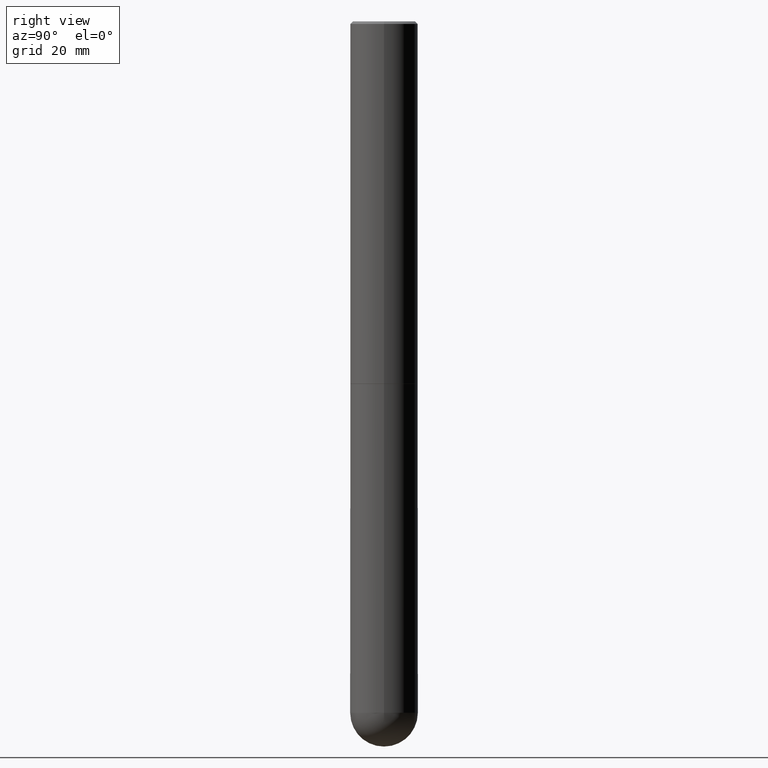
[diagram: clean part render]
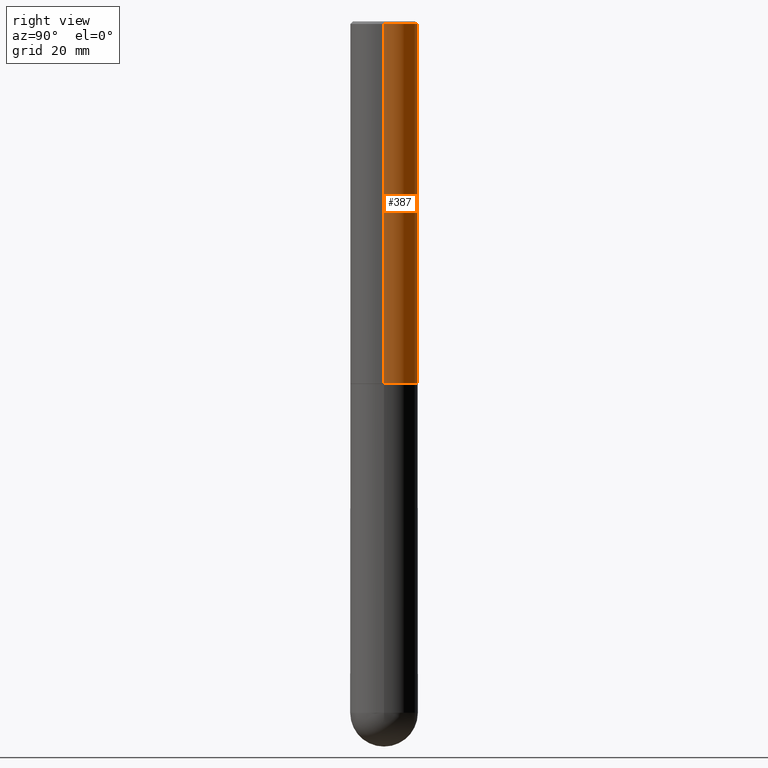
[diagram: same view with one face highlighted and labeled with its STEP entity id]
A machine part, right view. The second image highlights one B-rep face of the part: STEP entity #387.
In plain terms, the highlighted cylindrical surface (edge-blend (fillet) strip) has radius 7.0002 mm, axis along (-0, 0, 1).
Its self-contained STEP definition (entity closure, byte-faithful):
#1 = ORIENTED_EDGE ( 'NONE', *, *, #289, .F. ) ;
#8 = CARTESIAN_POINT ( 'NONE',  ( 7.218290275216666916E-29, -1.030580546786331359E-14, -2.951700000000000212 ) ) ;
#12 = EDGE_CURVE ( 'NONE', #248, #194, #258, .T. ) ;
#13 = CYLINDRICAL_SURFACE ( 'NONE', #69, 0.2756000000000002337 ) ;
#27 = ORIENTED_EDGE ( 'NONE', *, *, #87, .T. ) ;
#31 = VERTEX_POINT ( 'NONE', #45 ) ;
#45 = CARTESIAN_POINT ( 'NONE',  ( -0.2756000000000000116, 1.854674887193472050E-15, -0.02000000000000006287 ) ) ;
#46 = FACE_OUTER_BOUND ( 'NONE', #346, .T. ) ;
#50 = AXIS2_PLACEMENT_3D ( 'NONE', #8, #133, #256 ) ;
#52 = CARTESIAN_POINT ( 'NONE',  ( 0.2756000000000004557, -1.223030998183365327E-14, -2.951700000000000212 ) ) ;
#58 = VECTOR ( 'NONE', #77, 39.37007874015748143 ) ;
#69 = AXIS2_PLACEMENT_3D ( 'NONE', #145, #107, #303 ) ;
#77 = DIRECTION ( 'NONE',  ( -2.445468806185136877E-29, 3.491481338843145188E-15, 1.000000000000000000 ) ) ;
#87 = EDGE_CURVE ( 'NONE', #180, #31, #253, .T. ) ;
#90 = AXIS2_PLACEMENT_3D ( 'NONE', #160, #125, #350 ) ;
#94 = ORIENTED_EDGE ( 'NONE', *, *, #354, .T. ) ;
#105 = DIRECTION ( 'NONE',  ( -2.445468806185136877E-29, 3.491481338843145188E-15, 1.000000000000000000 ) ) ;
#107 = DIRECTION ( 'NONE',  ( -2.445468806185136597E-29, 3.491481338843145583E-15, 1.000000000000000000 ) ) ;
#117 = ORIENTED_EDGE ( 'NONE', *, *, #12, .F. ) ;
#125 = DIRECTION ( 'NONE',  ( -2.445468806185136597E-29, 3.491481338843145583E-15, 1.000000000000000000 ) ) ;
#133 = DIRECTION ( 'NONE',  ( -2.445468806185136597E-29, 3.491481338843145583E-15, 1.000000000000000000 ) ) ;
#145 = CARTESIAN_POINT ( 'NONE',  ( 0.000000000000000000, 0.000000000000000000, 0.000000000000000000 ) ) ;
#160 = CARTESIAN_POINT ( 'NONE',  ( 4.890937612370288923E-31, -6.982962677686312563E-17, -0.02000000000000006287 ) ) ;
#164 = VECTOR ( 'NONE', #105, 39.37007874015748143 ) ;
#165 = CIRCLE ( 'NONE', #50, 0.2756000000000004557 ) ;
#180 = VERTEX_POINT ( 'NONE', #222 ) ;
#194 = VERTEX_POINT ( 'NONE', #218 ) ;
#218 = CARTESIAN_POINT ( 'NONE',  ( 0.2756000000000000116, -1.960582874962697406E-15, -0.02000000000000006287 ) ) ;
#222 = CARTESIAN_POINT ( 'NONE',  ( -0.2756000000000004002, -3.229561767565246331E-15, -2.951700000000000212 ) ) ;
#231 = CARTESIAN_POINT ( 'NONE',  ( 0.2756000000000002337, -1.924504513970336926E-15, 1.343874319409361109E-29 ) ) ;
#248 = VERTEX_POINT ( 'NONE', #52 ) ;
#253 = LINE ( 'NONE', #388, #164 ) ;
#256 = DIRECTION ( 'NONE',  ( 1.000000000000000000, -6.982962677686269077E-15, 0.000000000000000000 ) ) ;
#258 = LINE ( 'NONE', #231, #58 ) ;
#289 = EDGE_CURVE ( 'NONE', #194, #31, #328, .T. ) ;
#303 = DIRECTION ( 'NONE',  ( 1.000000000000000000, -6.982962677686267499E-15, 4.876176775795935793E-29 ) ) ;
#328 = CIRCLE ( 'NONE', #90, 0.2756000000000000116 ) ;
#346 = EDGE_LOOP ( 'NONE', ( #94, #27, #1, #117 ) ) ;
#350 = DIRECTION ( 'NONE',  ( 1.000000000000000000, -6.982962677686267499E-15, 0.000000000000000000 ) ) ;
#354 = EDGE_CURVE ( 'NONE', #248, #180, #165, .T. ) ;
#387 = ADVANCED_FACE ( 'NONE', ( #46 ), #13, .T. ) ;
#388 = CARTESIAN_POINT ( 'NONE',  ( -0.2756000000000002337, 1.958255779754837773E-15, -1.355658510874253128E-29 ) ) ;